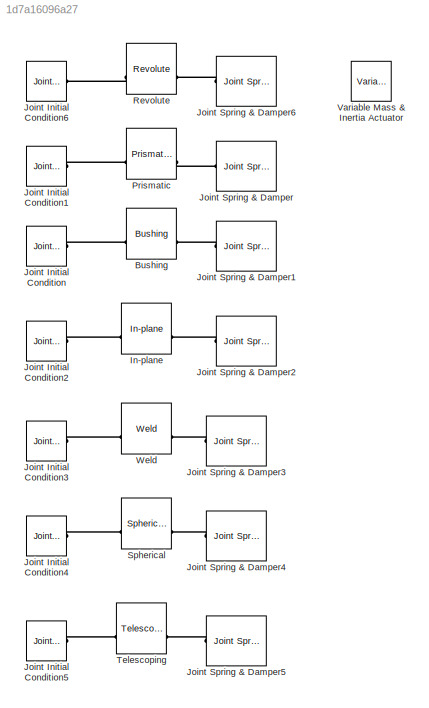
MODEL slx_1d7a16096a27
KIND model
CONFIG AbsTol = auto
CONFIG EnableMultiTasking = on
CONFIG FixedStep = auto
CONFIG MaxStep = auto
CONFIG MinStep = auto
CONFIG PostLoadFcn = r1_axis = [0 1 0];
CONFIG RelTol = 1e-3
CONFIG SampleTimeConstraint = Unconstrained
CONFIG Solver = ode45
CONFIG SolverName = ode45
CONFIG StartTime = 0.0
CONFIG StopTime = 10.0
BLOCK [Reference] Bushing  REF=mblibv1/Joints/Bushing
  Ports = [0, 0, 0, 0, 0, 2, 2]
  SourceBlock = mblibv1/Joints/Bushing
  SourceProductBaseCode = MS
  SourceProductName = Simscape Multibody
  SourceType = Bushing
BLOCK [Reference] In-plane  REF=mblibv1/Joints/In-plane
  Ports = [0, 0, 0, 0, 0, 2, 2]
  SourceBlock = mblibv1/Joints/In-plane
  SourceProductBaseCode = MS
  SourceProductName = Simscape Multibody
  SourceType = In-plane
BLOCK [Reference] Joint Initial Condition  REF=mblibv1/Sensors & 
Actuators/Joint Initial Condition
  Ports = [0, 0, 0, 0, 0, 0, 1]
  SourceBlock = mblibv1/Sensors & \nActuators/Joint Initial Condition
  SourceProductBaseCode = MS
  SourceProductName = Simscape Multibody
  SourceType = Joint Initial Condition
BLOCK [Reference] Joint Initial Condition1  REF=mblibv1/Sensors & 
Actuators/Joint Initial Condition
  Ports = [0, 0, 0, 0, 0, 0, 1]
  SourceBlock = mblibv1/Sensors & \nActuators/Joint Initial Condition
  SourceProductBaseCode = MS
  SourceProductName = Simscape Multibody
  SourceType = Joint Initial Condition
BLOCK [Reference] Joint Initial Condition2  REF=mblibv1/Sensors & 
Actuators/Joint Initial Condition
  Ports = [0, 0, 0, 0, 0, 0, 1]
  SourceBlock = mblibv1/Sensors & \nActuators/Joint Initial Condition
  SourceProductBaseCode = MS
  SourceProductName = Simscape Multibody
  SourceType = Joint Initial Condition
BLOCK [Reference] Joint Initial Condition3  REF=mblibv1/Sensors & 
Actuators/Joint Initial Condition
  Ports = [0, 0, 0, 0, 0, 0, 1]
  SourceBlock = mblibv1/Sensors & \nActuators/Joint Initial Condition
  SourceProductBaseCode = MS
  SourceProductName = Simscape Multibody
  SourceType = Joint Initial Condition
BLOCK [Reference] Joint Initial Condition4  REF=mblibv1/Sensors & 
Actuators/Joint Initial Condition
  Ports = [0, 0, 0, 0, 0, 0, 1]
  SourceBlock = mblibv1/Sensors & \nActuators/Joint Initial Condition
  SourceProductBaseCode = MS
  SourceProductName = Simscape Multibody
  SourceType = Joint Initial Condition
BLOCK [Reference] Joint Initial Condition5  REF=mblibv1/Sensors & 
Actuators/Joint Initial Condition
  Ports = [0, 0, 0, 0, 0, 0, 1]
  SourceBlock = mblibv1/Sensors & \nActuators/Joint Initial Condition
  SourceProductBaseCode = MS
  SourceProductName = Simscape Multibody
  SourceType = Joint Initial Condition
BLOCK [Reference] Joint Initial Condition6  REF=mblibv1/Sensors & 
Actuators/Joint Initial Condition
  Ports = [0, 0, 0, 0, 0, 0, 1]
  SourceBlock = mblibv1/Sensors & \nActuators/Joint Initial Condition
  SourceProductBaseCode = MS
  SourceProductName = Simscape Multibody
  SourceType = Joint Initial Condition
BLOCK [Reference] Joint Spring & Damper  REF=mblibv1/Force 
Elements/Joint Spring & Damper
  Ports = [0, 0, 0, 0, 0, 1]
  SourceBlock = mblibv1/Force \nElements/Joint Spring & Damper
  SourceProductBaseCode = MS
  SourceProductName = Simscape Multibody
  SourceType = Joint Spring & Damper
BLOCK [Reference] Joint Spring & Damper1  REF=mblibv1/Force 
Elements/Joint Spring & Damper
  Ports = [0, 0, 0, 0, 0, 1]
  SourceBlock = mblibv1/Force \nElements/Joint Spring & Damper
  SourceProductBaseCode = MS
  SourceProductName = Simscape Multibody
  SourceType = Joint Spring & Damper
BLOCK [Reference] Joint Spring & Damper2  REF=mblibv1/Force 
Elements/Joint Spring & Damper
  Ports = [0, 0, 0, 0, 0, 1]
  SourceBlock = mblibv1/Force \nElements/Joint Spring & Damper
  SourceProductBaseCode = MS
  SourceProductName = Simscape Multibody
  SourceType = Joint Spring & Damper
BLOCK [Reference] Joint Spring & Damper3  REF=mblibv1/Force 
Elements/Joint Spring & Damper
  Ports = [0, 0, 0, 0, 0, 1]
  SourceBlock = mblibv1/Force \nElements/Joint Spring & Damper
  SourceProductBaseCode = MS
  SourceProductName = Simscape Multibody
  SourceType = Joint Spring & Damper
BLOCK [Reference] Joint Spring & Damper4  REF=mblibv1/Force 
Elements/Joint Spring & Damper
  Ports = [0, 0, 0, 0, 0, 1]
  SourceBlock = mblibv1/Force \nElements/Joint Spring & Damper
  SourceProductBaseCode = MS
  SourceProductName = Simscape Multibody
  SourceType = Joint Spring & Damper
BLOCK [Reference] Joint Spring & Damper5  REF=mblibv1/Force 
Elements/Joint Spring & Damper
  Ports = [0, 0, 0, 0, 0, 1]
  SourceBlock = mblibv1/Force \nElements/Joint Spring & Damper
  SourceProductBaseCode = MS
  SourceProductName = Simscape Multibody
  SourceType = Joint Spring & Damper
BLOCK [Reference] Joint Spring & Damper6  REF=mblibv1/Force 
Elements/Joint Spring & Damper
  Ports = [0, 0, 0, 0, 0, 1]
  SourceBlock = mblibv1/Force \nElements/Joint Spring & Damper
  SourceProductBaseCode = MS
  SourceProductName = Simscape Multibody
  SourceType = Joint Spring & Damper
BLOCK [Reference] Prismatic  REF=mblibv1/Joints/Prismatic
  Ports = [0, 0, 0, 0, 0, 2, 2]
  SourceBlock = mblibv1/Joints/Prismatic
  SourceProductBaseCode = MS
  SourceProductName = Simscape Multibody
  SourceType = Prismatic
BLOCK [Reference] Revolute  REF=mblibv1/Joints/Revolute
  Ports = [0, 0, 0, 0, 0, 2, 2]
  SourceBlock = mblibv1/Joints/Revolute
  SourceProductBaseCode = MS
  SourceProductName = Simscape Multibody
  SourceType = Revolute
BLOCK [Reference] Spherical  REF=mblibv1/Joints/Spherical
  Ports = [0, 0, 0, 0, 0, 2, 2]
  SourceBlock = mblibv1/Joints/Spherical
  SourceProductBaseCode = MS
  SourceProductName = Simscape Multibody
  SourceType = Spherical
BLOCK [Reference] Telescoping  REF=mblibv1/Joints/Telescoping
  Ports = [0, 0, 0, 0, 0, 2, 2]
  SourceBlock = mblibv1/Joints/Telescoping
  SourceProductBaseCode = MS
  SourceProductName = Simscape Multibody
  SourceType = Telescoping
BLOCK [Reference] Variable Mass & Inertia Actuator  REF=mblibv1/Sensors & 
Actuators/Variable Mass &
Inertia Actuator
  Ports = [1, 0, 0, 0, 0, 0, 1]
  SourceBlock = mblibv1/Sensors & \nActuators/Variable Mass &\nInertia Actuator
  SourceProductBaseCode = MS
  SourceProductName = Simscape Multibody
  SourceType = Variable Mass & Inertia Actuator
BLOCK [Reference] Weld  REF=mblibv1/Joints/Weld
  Ports = [0, 0, 0, 0, 0, 2, 2]
  SourceBlock = mblibv1/Joints/Weld
  SourceProductBaseCode = MS
  SourceProductName = Simscape Multibody
  SourceType = Weld
PLINE Bushing:LConn2 -- Joint Initial Condition:RConn1
PLINE Bushing:RConn2 -- Joint Spring & Damper1:LConn1
PLINE In-plane:LConn2 -- Joint Initial Condition2:RConn1
PLINE In-plane:RConn2 -- Joint Spring & Damper2:LConn1
PLINE Joint Initial Condition1:RConn1 -- Prismatic:LConn2
PLINE Joint Initial Condition3:RConn1 -- Weld:LConn2
PLINE Joint Initial Condition4:RConn1 -- Spherical:LConn2
PLINE Joint Initial Condition5:RConn1 -- Telescoping:LConn2
PLINE Joint Initial Condition6:RConn1 -- Revolute:LConn2
PLINE Joint Spring & Damper3:LConn1 -- Weld:RConn2
PLINE Joint Spring & Damper4:LConn1 -- Spherical:RConn2
PLINE Joint Spring & Damper5:LConn1 -- Telescoping:RConn2
PLINE Joint Spring & Damper6:LConn1 -- Revolute:RConn2
PLINE Joint Spring & Damper:LConn1 -- Prismatic:RConn2
